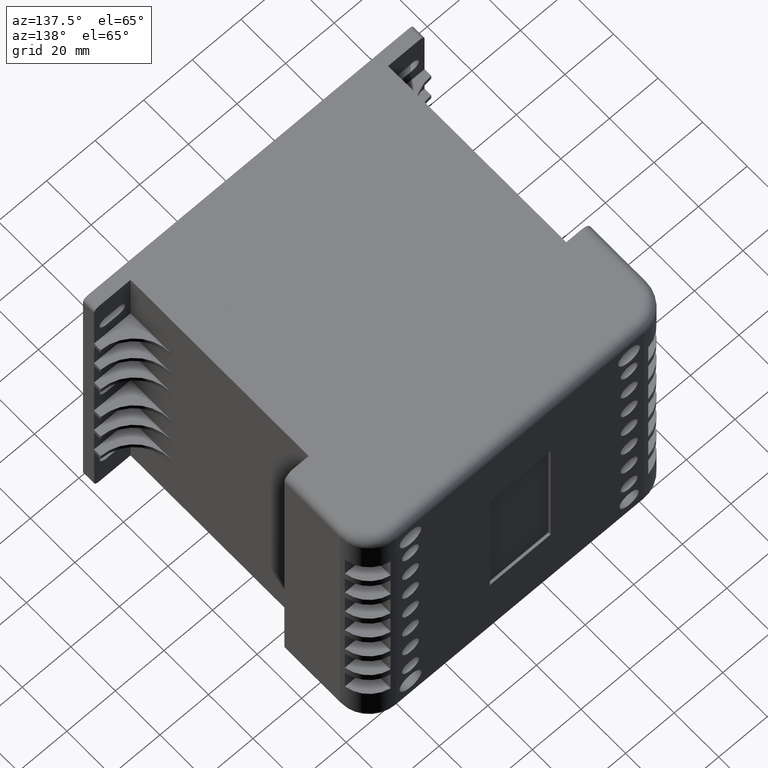
[diagram: clean part render]
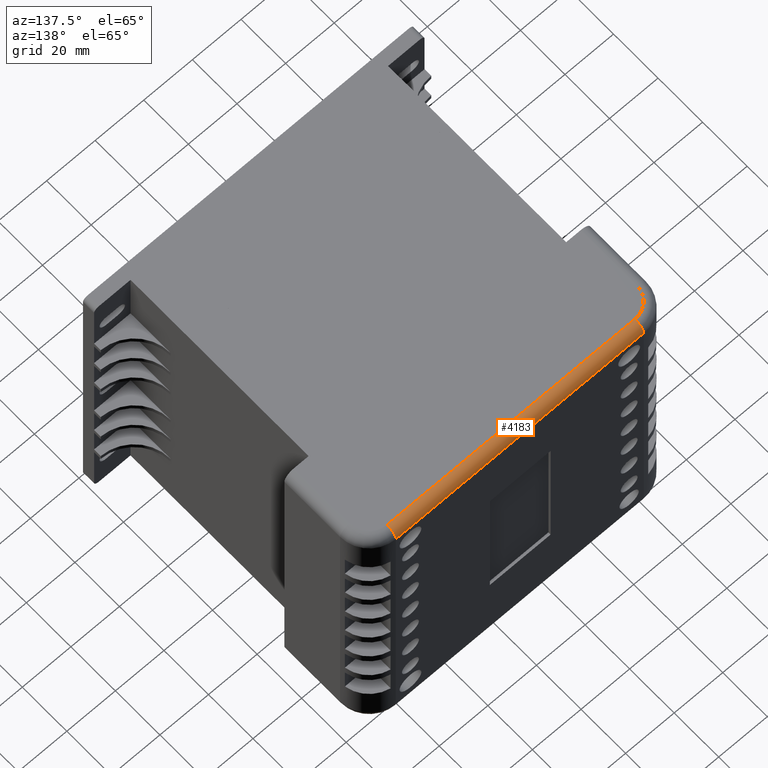
[diagram: same view with one face highlighted and labeled with its STEP entity id]
A machine part, auxiliary view. The second image highlights one B-rep face of the part: STEP entity #4183.
In plain terms, the highlighted cylindrical surface (edge-blend (fillet) strip) has radius 4 mm, axis along (1, 0, 0).
Its self-contained STEP definition (entity closure, byte-faithful):
#98=CYLINDRICAL_SURFACE('',#4642,4.);
#207=CIRCLE('',#4639,4.);
#210=CIRCLE('',#4643,3.99999999999999);
#470=FACE_OUTER_BOUND('',#729,.T.);
#729=EDGE_LOOP('',(#3246,#3247,#3248,#3249));
#1114=LINE('',#6764,#1506);
#1115=LINE('',#6765,#1507);
#1506=VECTOR('',#5617,10.);
#1507=VECTOR('',#5618,10.);
#1873=VERTEX_POINT('',#6755);
#1874=VERTEX_POINT('',#6756);
#1875=VERTEX_POINT('',#6761);
#1876=VERTEX_POINT('',#6762);
#2355=EDGE_CURVE('',#1873,#1874,#207,.T.);
#2358=EDGE_CURVE('',#1875,#1876,#210,.T.);
#2359=EDGE_CURVE('',#1876,#1874,#1114,.T.);
#2360=EDGE_CURVE('',#1873,#1875,#1115,.T.);
#3246=ORIENTED_EDGE('',*,*,#2358,.T.);
#3247=ORIENTED_EDGE('',*,*,#2359,.T.);
#3248=ORIENTED_EDGE('',*,*,#2355,.F.);
#3249=ORIENTED_EDGE('',*,*,#2360,.T.);
#4183=ADVANCED_FACE('',(#470),#98,.T.);
#4639=AXIS2_PLACEMENT_3D('',#6757,#5607,#5608);
#4642=AXIS2_PLACEMENT_3D('',#6760,#5613,#5614);
#4643=AXIS2_PLACEMENT_3D('',#6763,#5615,#5616);
#5607=DIRECTION('center_axis',(-1.,0.,0.));
#5608=DIRECTION('ref_axis',(0.,0.,1.));
#5613=DIRECTION('center_axis',(1.,0.,2.81961403079405E-16));
#5614=DIRECTION('ref_axis',(0.,0.707106781186548,0.707106781186547));
#5615=DIRECTION('center_axis',(-1.,0.,0.));
#5616=DIRECTION('ref_axis',(0.,0.,1.));
#5617=DIRECTION('',(-1.,0.,-2.81961403079405E-16));
#5618=DIRECTION('',(1.,0.,2.81961403079405E-16));
#6755=CARTESIAN_POINT('',(-114.,33.,126.));
#6756=CARTESIAN_POINT('',(-114.,37.,122.));
#6757=CARTESIAN_POINT('Origin',(-114.,33.,122.));
#6760=CARTESIAN_POINT('Origin',(-94.5,33.,122.));
#6761=CARTESIAN_POINT('',(-12.,33.,126.));
#6762=CARTESIAN_POINT('',(-12.,37.,122.));
#6763=CARTESIAN_POINT('Origin',(-12.,33.,122.));
#6764=CARTESIAN_POINT('',(-94.5,37.,122.));
#6765=CARTESIAN_POINT('',(-94.5,33.,126.));